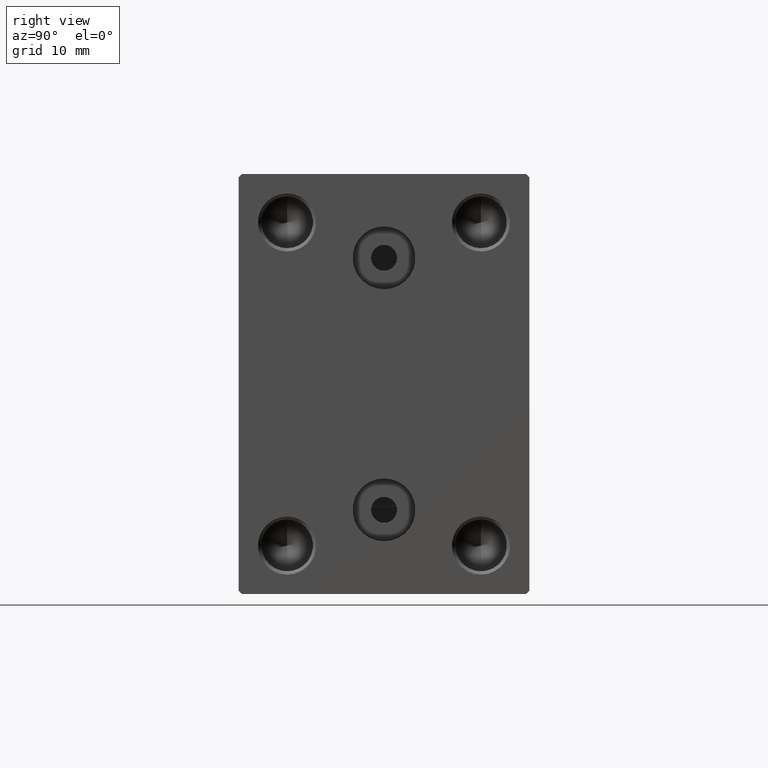
[diagram: clean part render]
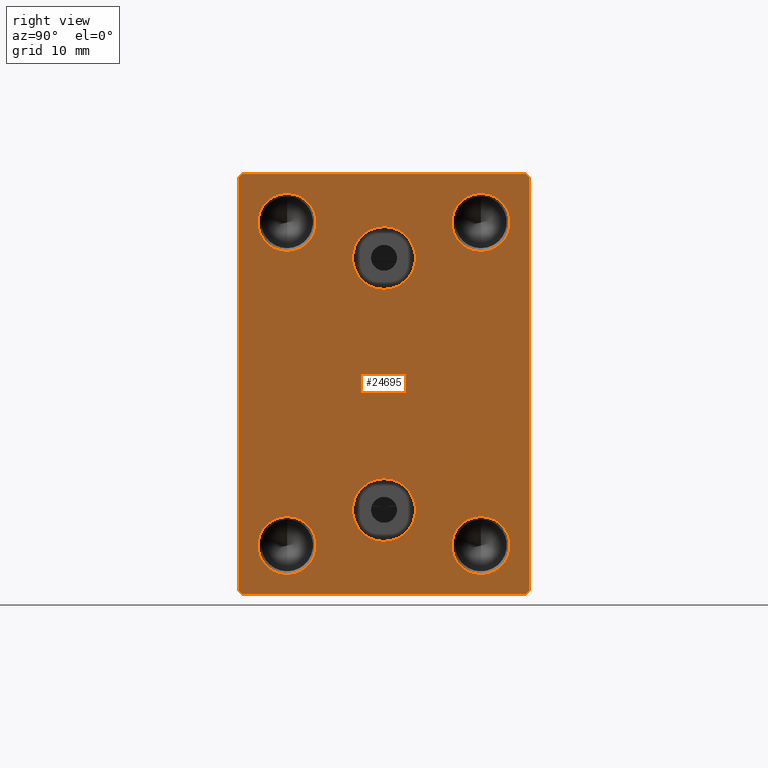
[diagram: same view with one face highlighted and labeled with its STEP entity id]
A machine part, right view. The second image highlights one B-rep face of the part: STEP entity #24695.
In plain terms, the highlighted planar face has unit normal (1, 0, 0).
Its self-contained STEP definition (entity closure, byte-faithful):
#103 = CARTESIAN_POINT ( 'NONE',  ( 70.00000000000000000, 22.50000000000000711, -31.99999999999999289 ) ) ;
#867 = PLANE ( 'NONE',  #34562 ) ;
#962 = DIRECTION ( 'NONE',  ( 1.000000000000000000, -0.000000000000000000, -0.000000000000000000 ) ) ;
#1065 = CARTESIAN_POINT ( 'NONE',  ( 70.00000000000000000, -15.00000000000000000, -25.00000000000000000 ) ) ;
#1274 = DIRECTION ( 'NONE',  ( 1.000000000000000000, -0.000000000000000000, -0.000000000000000000 ) ) ;
#1297 = FACE_BOUND ( 'NONE', #31364, .T. ) ;
#1321 = CIRCLE ( 'NONE', #11288, 4.499999999999976019 ) ;
#1364 = EDGE_CURVE ( 'NONE', #15244, #42667, #1321, .T. ) ;
#1385 = VERTEX_POINT ( 'NONE', #15498 ) ;
#1775 = EDGE_CURVE ( 'NONE', #1385, #12777, #24194, .T. ) ;
#2022 = DIRECTION ( 'NONE',  ( -0.000000000000000000, -0.7071067811865574537, 0.7071067811865376918 ) ) ;
#2128 = EDGE_CURVE ( 'NONE', #25518, #11409, #19289, .T. ) ;
#2339 = EDGE_CURVE ( 'NONE', #42631, #12365, #2777, .T. ) ;
#2410 = CARTESIAN_POINT ( 'NONE',  ( 70.00000000000000000, 2.388061258337339333E-15, -24.36000000000000298 ) ) ;
#2777 = CIRCLE ( 'NONE', #39184, 4.499999999999976019 ) ;
#3771 = VECTOR ( 'NONE', #17599, 1000.000000000000114 ) ;
#3813 = CARTESIAN_POINT ( 'NONE',  ( 70.00000000000000000, -15.00000000000000000, -25.00000000000000000 ) ) ;
#4206 = DIRECTION ( 'NONE',  ( 1.000000000000000000, 0.000000000000000000, 0.000000000000000000 ) ) ;
#4595 = VERTEX_POINT ( 'NONE', #42973 ) ;
#4987 = CIRCLE ( 'NONE', #9985, 4.499999999999976019 ) ;
#5023 = AXIS2_PLACEMENT_3D ( 'NONE', #22216, #33167, #15516 ) ;
#5679 = DIRECTION ( 'NONE',  ( 0.000000000000000000, 0.000000000000000000, -1.000000000000000000 ) ) ;
#5996 = DIRECTION ( 'NONE',  ( 1.000000000000000000, 0.000000000000000000, -0.000000000000000000 ) ) ;
#6002 = VECTOR ( 'NONE', #40369, 1000.000000000000000 ) ;
#6755 = EDGE_CURVE ( 'NONE', #12365, #42631, #18491, .T. ) ;
#7227 = EDGE_LOOP ( 'NONE', ( #29525, #32064 ) ) ;
#7288 = EDGE_CURVE ( 'NONE', #37514, #4595, #33489, .T. ) ;
#7878 = DIRECTION ( 'NONE',  ( 0.000000000000000000, 0.000000000000000000, -1.000000000000000000 ) ) ;
#7978 = AXIS2_PLACEMENT_3D ( 'NONE', #41639, #962, #7878 ) ;
#8525 = VERTEX_POINT ( 'NONE', #103 ) ;
#8543 = EDGE_CURVE ( 'NONE', #28051, #23358, #4987, .T. ) ;
#8731 = ORIENTED_EDGE ( 'NONE', *, *, #42247, .T. ) ;
#9120 = DIRECTION ( 'NONE',  ( 1.000000000000000000, 0.000000000000000000, 0.000000000000000000 ) ) ;
#9189 = EDGE_CURVE ( 'NONE', #26314, #32735, #43555, .T. ) ;
#9269 = DIRECTION ( 'NONE',  ( 0.000000000000000000, 0.000000000000000000, -1.000000000000000000 ) ) ;
#9431 = VECTOR ( 'NONE', #19619, 1000.000000000000000 ) ;
#9787 = CARTESIAN_POINT ( 'NONE',  ( 70.00000000000000000, -22.49999999999999289, -32.50000000000000711 ) ) ;
#9985 = AXIS2_PLACEMENT_3D ( 'NONE', #30913, #13479, #27125 ) ;
#10272 = CIRCLE ( 'NONE', #35256, 4.499999999999976019 ) ;
#10393 = ORIENTED_EDGE ( 'NONE', *, *, #9189, .F. ) ;
#11288 = AXIS2_PLACEMENT_3D ( 'NONE', #19281, #11928, #15285 ) ;
#11409 = VERTEX_POINT ( 'NONE', #41319 ) ;
#11668 = VECTOR ( 'NONE', #32129, 1000.000000000000000 ) ;
#11790 = FACE_BOUND ( 'NONE', #24289, .T. ) ;
#11928 = DIRECTION ( 'NONE',  ( 1.000000000000000000, -0.000000000000000000, -0.000000000000000000 ) ) ;
#12230 = CARTESIAN_POINT ( 'NONE',  ( 70.00000000000000000, -27.24999999999984368, -27.25000000000022027 ) ) ;
#12365 = VERTEX_POINT ( 'NONE', #36919 ) ;
#12399 = CIRCLE ( 'NONE', #15934, 4.859999999999999432 ) ;
#12466 = ORIENTED_EDGE ( 'NONE', *, *, #20837, .T. ) ;
#12627 = ORIENTED_EDGE ( 'NONE', *, *, #38459, .T. ) ;
#12681 = CARTESIAN_POINT ( 'NONE',  ( 70.00000000000000000, -3.571693674697836683E-15, 19.49999999999999645 ) ) ;
#12777 = VERTEX_POINT ( 'NONE', #32354 ) ;
#13479 = DIRECTION ( 'NONE',  ( 1.000000000000000000, -0.000000000000000000, -0.000000000000000000 ) ) ;
#14079 = EDGE_CURVE ( 'NONE', #23358, #28051, #40107, .T. ) ;
#14228 = AXIS2_PLACEMENT_3D ( 'NONE', #28480, #41905, #35410 ) ;
#14254 = AXIS2_PLACEMENT_3D ( 'NONE', #43102, #5996, #36607 ) ;
#14479 = CARTESIAN_POINT ( 'NONE',  ( 70.00000000000000000, 0.000000000000000000, 0.000000000000000000 ) ) ;
#14541 = VECTOR ( 'NONE', #9269, 1000.000000000000000 ) ;
#14571 = ORIENTED_EDGE ( 'NONE', *, *, #14079, .F. ) ;
#14788 = CARTESIAN_POINT ( 'NONE',  ( 70.00000000000000000, 15.00000000000000178, 25.00000000000000000 ) ) ;
#15137 = FACE_OUTER_BOUND ( 'NONE', #17060, .T. ) ;
#15244 = VERTEX_POINT ( 'NONE', #37296 ) ;
#15285 = DIRECTION ( 'NONE',  ( 0.000000000000000000, 0.000000000000000000, -1.000000000000000000 ) ) ;
#15432 = ORIENTED_EDGE ( 'NONE', *, *, #2339, .F. ) ;
#15498 = CARTESIAN_POINT ( 'NONE',  ( 70.00000000000000000, -15.00000000000000000, -29.49999999999997158 ) ) ;
#15516 = DIRECTION ( 'NONE',  ( 0.000000000000000000, 0.000000000000000000, 1.000000000000000000 ) ) ;
#15934 = AXIS2_PLACEMENT_3D ( 'NONE', #12681, #9120, #43542 ) ;
#16045 = LINE ( 'NONE', #9787, #9431 ) ;
#16481 = ORIENTED_EDGE ( 'NONE', *, *, #30877, .F. ) ;
#16502 = EDGE_CURVE ( 'NONE', #42234, #25518, #19199, .T. ) ;
#16680 = CIRCLE ( 'NONE', #42380, 4.499999999999976019 ) ;
#17060 = EDGE_LOOP ( 'NONE', ( #34953, #12627, #33457, #29476, #41854, #8731, #12466, #27842 ) ) ;
#17063 = CARTESIAN_POINT ( 'NONE',  ( 70.00000000000000000, 15.00000000000000178, 29.49999999999997513 ) ) ;
#17418 = CARTESIAN_POINT ( 'NONE',  ( 70.00000000000000000, -22.49999999999999289, 31.99999999999998579 ) ) ;
#17599 = DIRECTION ( 'NONE',  ( 0.000000000000000000, -0.7071067811865474617, -0.7071067811865474617 ) ) ;
#17808 = CARTESIAN_POINT ( 'NONE',  ( 70.00000000000000000, -3.571693674697836683E-15, 14.63999999999999702 ) ) ;
#18265 = FACE_BOUND ( 'NONE', #31275, .T. ) ;
#18491 = CIRCLE ( 'NONE', #43489, 4.499999999999976019 ) ;
#18721 = CARTESIAN_POINT ( 'NONE',  ( 70.00000000000000000, 22.50000000000000000, 31.99999999999999289 ) ) ;
#18782 = VERTEX_POINT ( 'NONE', #40679 ) ;
#18932 = LINE ( 'NONE', #12230, #11668 ) ;
#19148 = LINE ( 'NONE', #19373, #20248 ) ;
#19195 = EDGE_CURVE ( 'NONE', #42667, #15244, #16680, .T. ) ;
#19199 = LINE ( 'NONE', #42923, #39447 ) ;
#19281 = CARTESIAN_POINT ( 'NONE',  ( 70.00000000000000000, 15.00000000000000178, -25.00000000000000000 ) ) ;
#19289 = LINE ( 'NONE', #36081, #33458 ) ;
#19373 = CARTESIAN_POINT ( 'NONE',  ( 70.00000000000000000, 27.25000000000031264, -27.24999999999955236 ) ) ;
#19508 = VERTEX_POINT ( 'NONE', #17418 ) ;
#19619 = DIRECTION ( 'NONE',  ( 0.000000000000000000, 1.000000000000000000, 0.000000000000000000 ) ) ;
#19817 = EDGE_CURVE ( 'NONE', #12777, #1385, #10272, .T. ) ;
#20239 = LINE ( 'NONE', #34095, #6002 ) ;
#20248 = VECTOR ( 'NONE', #39524, 999.9999999999998863 ) ;
#20837 = EDGE_CURVE ( 'NONE', #8525, #42234, #20239, .T. ) ;
#21173 = FACE_BOUND ( 'NONE', #33535, .T. ) ;
#22026 = DIRECTION ( 'NONE',  ( 1.000000000000000000, -0.000000000000000000, -0.000000000000000000 ) ) ;
#22216 = CARTESIAN_POINT ( 'NONE',  ( 70.00000000000000000, 2.388061258337339333E-15, -19.50000000000000355 ) ) ;
#22573 = VERTEX_POINT ( 'NONE', #25720 ) ;
#22582 = CARTESIAN_POINT ( 'NONE',  ( 70.00000000000000000, -15.00000000000000000, 20.50000000000003197 ) ) ;
#23358 = VERTEX_POINT ( 'NONE', #22582 ) ;
#23783 = EDGE_CURVE ( 'NONE', #4595, #37514, #12399, .T. ) ;
#23800 = ORIENTED_EDGE ( 'NONE', *, *, #19817, .F. ) ;
#24082 = CARTESIAN_POINT ( 'NONE',  ( 70.00000000000000000, 15.00000000000000178, -25.00000000000000000 ) ) ;
#24194 = CIRCLE ( 'NONE', #27767, 4.499999999999976019 ) ;
#24289 = EDGE_LOOP ( 'NONE', ( #29950, #14571 ) ) ;
#24590 = DIRECTION ( 'NONE',  ( 0.000000000000000000, 0.000000000000000000, -1.000000000000000000 ) ) ;
#24695 = ADVANCED_FACE ( 'NONE', ( #32123, #18265, #25206, #11790, #21173, #1297, #15137 ), #867, .T. ) ;
#25206 = FACE_BOUND ( 'NONE', #25786, .T. ) ;
#25518 = VERTEX_POINT ( 'NONE', #41276 ) ;
#25720 = CARTESIAN_POINT ( 'NONE',  ( 70.00000000000000000, 21.99999999999999289, -32.50000000000000711 ) ) ;
#25786 = EDGE_LOOP ( 'NONE', ( #15432, #43700 ) ) ;
#26314 = VERTEX_POINT ( 'NONE', #2410 ) ;
#26389 = CARTESIAN_POINT ( 'NONE',  ( 70.00000000000000000, -22.49999999999999289, -32.00000000000001421 ) ) ;
#27125 = DIRECTION ( 'NONE',  ( 0.000000000000000000, 0.000000000000000000, -1.000000000000000000 ) ) ;
#27231 = CARTESIAN_POINT ( 'NONE',  ( 70.00000000000000000, -27.24999999999998934, 27.24999999999998934 ) ) ;
#27767 = AXIS2_PLACEMENT_3D ( 'NONE', #3813, #22026, #24590 ) ;
#27842 = ORIENTED_EDGE ( 'NONE', *, *, #16502, .T. ) ;
#28051 = VERTEX_POINT ( 'NONE', #36806 ) ;
#28480 = CARTESIAN_POINT ( 'NONE',  ( 70.00000000000000000, -3.571693674697836683E-15, 19.49999999999999645 ) ) ;
#28519 = ORIENTED_EDGE ( 'NONE', *, *, #1364, .F. ) ;
#29389 = CARTESIAN_POINT ( 'NONE',  ( 70.00000000000000000, -22.49999999999999289, 32.49999999999998579 ) ) ;
#29476 = ORIENTED_EDGE ( 'NONE', *, *, #40941, .T. ) ;
#29503 = ORIENTED_EDGE ( 'NONE', *, *, #19195, .F. ) ;
#29525 = ORIENTED_EDGE ( 'NONE', *, *, #7288, .F. ) ;
#29899 = CARTESIAN_POINT ( 'NONE',  ( 70.00000000000000000, 2.983239602722953005E-15, -14.64000000000000412 ) ) ;
#29950 = ORIENTED_EDGE ( 'NONE', *, *, #8543, .F. ) ;
#30877 = EDGE_CURVE ( 'NONE', #32735, #26314, #37806, .T. ) ;
#30913 = CARTESIAN_POINT ( 'NONE',  ( 70.00000000000000000, -15.00000000000000000, 25.00000000000000000 ) ) ;
#31005 = DIRECTION ( 'NONE',  ( 0.000000000000000000, 0.000000000000000000, -1.000000000000000000 ) ) ;
#31275 = EDGE_LOOP ( 'NONE', ( #10393, #16481 ) ) ;
#31339 = DIRECTION ( 'NONE',  ( 1.000000000000000000, -0.000000000000000000, -0.000000000000000000 ) ) ;
#31364 = EDGE_LOOP ( 'NONE', ( #29503, #28519 ) ) ;
#32064 = ORIENTED_EDGE ( 'NONE', *, *, #23783, .F. ) ;
#32123 = FACE_BOUND ( 'NONE', #7227, .T. ) ;
#32129 = DIRECTION ( 'NONE',  ( -0.000000000000000000, 0.7071067811865524577, -0.7071067811865426878 ) ) ;
#32354 = CARTESIAN_POINT ( 'NONE',  ( 70.00000000000000000, -15.00000000000000000, -20.50000000000003197 ) ) ;
#32735 = VERTEX_POINT ( 'NONE', #29899 ) ;
#33167 = DIRECTION ( 'NONE',  ( 1.000000000000000000, 0.000000000000000000, -0.000000000000000000 ) ) ;
#33366 = DIRECTION ( 'NONE',  ( 0.000000000000000000, -1.000000000000000000, -1.541976423090495633E-16 ) ) ;
#33457 = ORIENTED_EDGE ( 'NONE', *, *, #42558, .T. ) ;
#33458 = VECTOR ( 'NONE', #33366, 1000.000000000000000 ) ;
#33489 = CIRCLE ( 'NONE', #14228, 4.859999999999999432 ) ;
#33535 = EDGE_LOOP ( 'NONE', ( #23800, #34131 ) ) ;
#33750 = DIRECTION ( 'NONE',  ( 1.000000000000000000, -0.000000000000000000, -0.000000000000000000 ) ) ;
#34095 = CARTESIAN_POINT ( 'NONE',  ( 70.00000000000000000, 22.50000000000000711, -32.50000000000000711 ) ) ;
#34131 = ORIENTED_EDGE ( 'NONE', *, *, #1775, .F. ) ;
#34562 = AXIS2_PLACEMENT_3D ( 'NONE', #14479, #4206, #42192 ) ;
#34953 = ORIENTED_EDGE ( 'NONE', *, *, #2128, .T. ) ;
#35256 = AXIS2_PLACEMENT_3D ( 'NONE', #1065, #1274, #31005 ) ;
#35410 = DIRECTION ( 'NONE',  ( 0.000000000000000000, 0.000000000000000000, -1.000000000000000000 ) ) ;
#35654 = LINE ( 'NONE', #29389, #14541 ) ;
#36081 = CARTESIAN_POINT ( 'NONE',  ( 70.00000000000000000, 22.50000000000000000, 32.49999999999999289 ) ) ;
#36607 = DIRECTION ( 'NONE',  ( 0.000000000000000000, 0.000000000000000000, 1.000000000000000000 ) ) ;
#36806 = CARTESIAN_POINT ( 'NONE',  ( 70.00000000000000000, -15.00000000000000000, 29.49999999999997158 ) ) ;
#36919 = CARTESIAN_POINT ( 'NONE',  ( 70.00000000000000000, 15.00000000000000178, 20.50000000000002842 ) ) ;
#36980 = CARTESIAN_POINT ( 'NONE',  ( 70.00000000000000000, 15.00000000000000178, -20.50000000000002842 ) ) ;
#37121 = VERTEX_POINT ( 'NONE', #26389 ) ;
#37296 = CARTESIAN_POINT ( 'NONE',  ( 70.00000000000000000, 15.00000000000000178, -29.49999999999997513 ) ) ;
#37341 = EDGE_CURVE ( 'NONE', #18782, #22573, #16045, .T. ) ;
#37514 = VERTEX_POINT ( 'NONE', #17808 ) ;
#37715 = DIRECTION ( 'NONE',  ( 1.000000000000000000, -0.000000000000000000, -0.000000000000000000 ) ) ;
#37806 = CIRCLE ( 'NONE', #14254, 4.859999999999999432 ) ;
#38459 = EDGE_CURVE ( 'NONE', #11409, #19508, #44220, .T. ) ;
#39184 = AXIS2_PLACEMENT_3D ( 'NONE', #14788, #31339, #41642 ) ;
#39447 = VECTOR ( 'NONE', #2022, 999.9999999999998863 ) ;
#39524 = DIRECTION ( 'NONE',  ( -0.000000000000000000, 0.7071067811865376918, 0.7071067811865574537 ) ) ;
#40107 = CIRCLE ( 'NONE', #7978, 4.499999999999976019 ) ;
#40369 = DIRECTION ( 'NONE',  ( 0.000000000000000000, -1.067522139062650425E-16, 1.000000000000000000 ) ) ;
#40456 = CARTESIAN_POINT ( 'NONE',  ( 70.00000000000000000, 15.00000000000000178, 25.00000000000000000 ) ) ;
#40679 = CARTESIAN_POINT ( 'NONE',  ( 70.00000000000000000, -21.99999999999999289, -32.50000000000000711 ) ) ;
#40941 = EDGE_CURVE ( 'NONE', #37121, #18782, #18932, .T. ) ;
#41276 = CARTESIAN_POINT ( 'NONE',  ( 70.00000000000000000, 21.99999999999998579, 32.49999999999999289 ) ) ;
#41319 = CARTESIAN_POINT ( 'NONE',  ( 70.00000000000000000, -21.99999999999997868, 32.49999999999998579 ) ) ;
#41348 = DIRECTION ( 'NONE',  ( 0.000000000000000000, 0.000000000000000000, -1.000000000000000000 ) ) ;
#41639 = CARTESIAN_POINT ( 'NONE',  ( 70.00000000000000000, -15.00000000000000000, 25.00000000000000000 ) ) ;
#41642 = DIRECTION ( 'NONE',  ( 0.000000000000000000, 0.000000000000000000, -1.000000000000000000 ) ) ;
#41854 = ORIENTED_EDGE ( 'NONE', *, *, #37341, .T. ) ;
#41905 = DIRECTION ( 'NONE',  ( 1.000000000000000000, 0.000000000000000000, 0.000000000000000000 ) ) ;
#42192 = DIRECTION ( 'NONE',  ( 0.000000000000000000, 0.000000000000000000, -1.000000000000000000 ) ) ;
#42234 = VERTEX_POINT ( 'NONE', #18721 ) ;
#42247 = EDGE_CURVE ( 'NONE', #22573, #8525, #19148, .T. ) ;
#42380 = AXIS2_PLACEMENT_3D ( 'NONE', #24082, #37715, #5679 ) ;
#42558 = EDGE_CURVE ( 'NONE', #19508, #37121, #35654, .T. ) ;
#42631 = VERTEX_POINT ( 'NONE', #17063 ) ;
#42667 = VERTEX_POINT ( 'NONE', #36980 ) ;
#42923 = CARTESIAN_POINT ( 'NONE',  ( 70.00000000000000000, 27.24999999999968026, 27.25000000000044054 ) ) ;
#42973 = CARTESIAN_POINT ( 'NONE',  ( 70.00000000000000000, -2.976515330312223406E-15, 24.35999999999999588 ) ) ;
#43102 = CARTESIAN_POINT ( 'NONE',  ( 70.00000000000000000, 2.388061258337339333E-15, -19.50000000000000355 ) ) ;
#43489 = AXIS2_PLACEMENT_3D ( 'NONE', #40456, #33750, #41348 ) ;
#43542 = DIRECTION ( 'NONE',  ( 0.000000000000000000, 0.000000000000000000, -1.000000000000000000 ) ) ;
#43555 = CIRCLE ( 'NONE', #5023, 4.859999999999999432 ) ;
#43700 = ORIENTED_EDGE ( 'NONE', *, *, #6755, .F. ) ;
#44220 = LINE ( 'NONE', #27231, #3771 ) ;